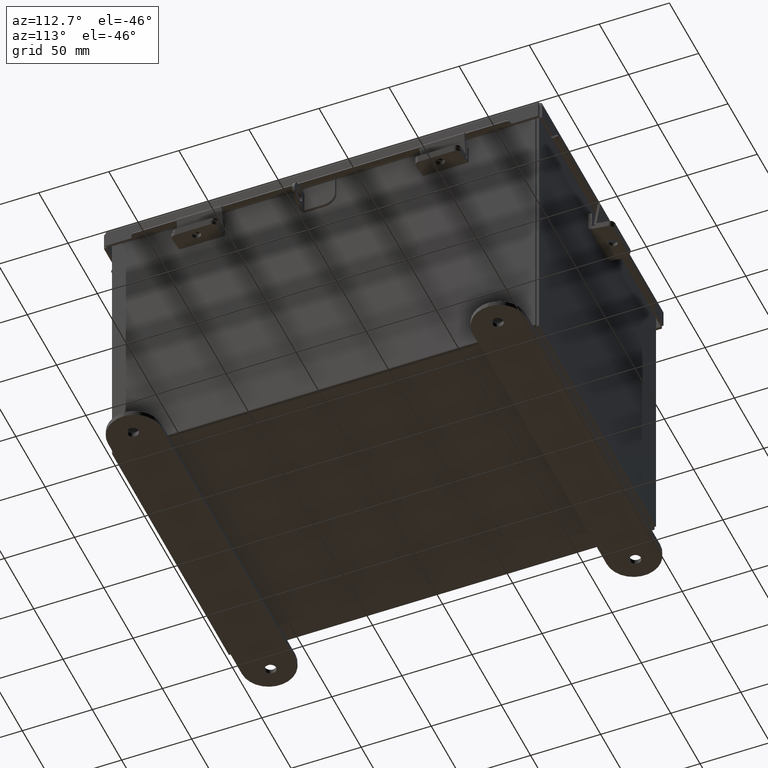
[diagram: clean part render]
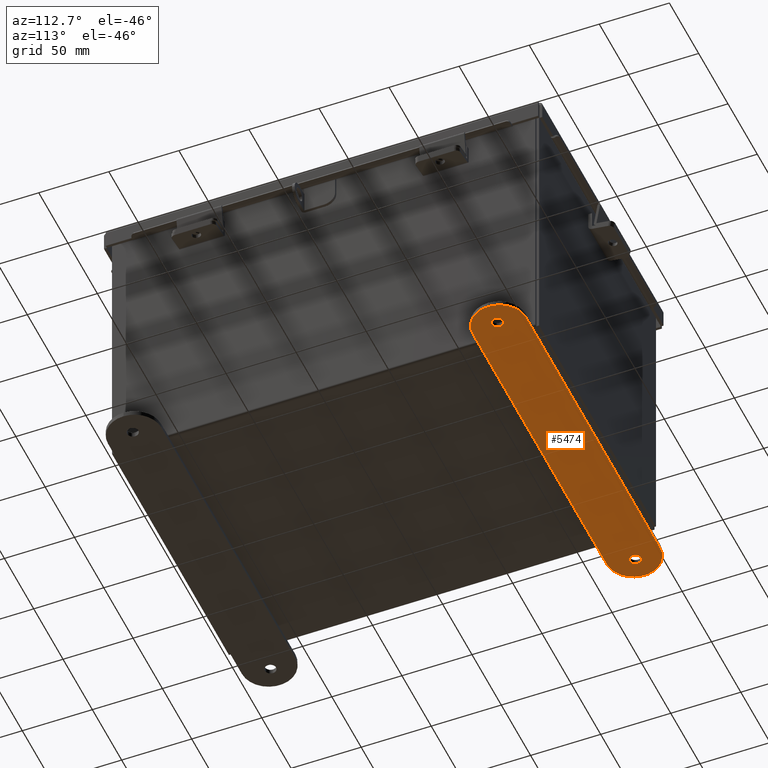
[diagram: same view with one face highlighted and labeled with its STEP entity id]
A machine part, auxiliary view. The second image highlights one B-rep face of the part: STEP entity #5474.
In plain terms, the highlighted planar face has unit normal (0, 0, 1).
Its self-contained STEP definition (entity closure, byte-faithful):
#70 = LINE ( 'NONE', #2746, #12434 ) ;
#524 = CIRCLE ( 'NONE', #2438, 0.1564999999999992800 ) ;
#576 = ORIENTED_EDGE ( 'NONE', *, *, #940, .T. ) ;
#776 = EDGE_CURVE ( 'NONE', #14219, #9197, #2740, .T. ) ;
#875 = ORIENTED_EDGE ( 'NONE', *, *, #13649, .T. ) ;
#940 = EDGE_CURVE ( 'NONE', #14368, #7557, #524, .T. ) ;
#962 = DIRECTION ( 'NONE',  ( 0.0000000000000000000, 0.0000000000000000000, -1.000000000000000000 ) ) ;
#1417 = CARTESIAN_POINT ( 'NONE',  ( 4.468500000000000600, 0.4120940649496089300, 0.0000000000000000000 ) ) ;
#1634 = PLANE ( 'NONE',  #15403 ) ;
#1668 = CARTESIAN_POINT ( 'NONE',  ( 4.499999999999999100, 0.4120940649496122000, 0.0000000000000000000 ) ) ;
#1882 = CARTESIAN_POINT ( 'NONE',  ( 4.781499999999999400, 0.4120940649496089300, 0.0000000000000000000 ) ) ;
#1883 = VECTOR ( 'NONE', #15033, 39.37007874015748100 ) ;
#2029 = AXIS2_PLACEMENT_3D ( 'NONE', #10758, #3588, #11995 ) ;
#2228 = CARTESIAN_POINT ( 'NONE',  ( 4.499999999999999100, 1.162094064949613600, 0.0000000000000000000 ) ) ;
#2281 = CARTESIAN_POINT ( 'NONE',  ( -4.499999999999999100, 1.162094064949612800, 0.0000000000000000000 ) ) ;
#2438 = AXIS2_PLACEMENT_3D ( 'NONE', #11183, #7540, #13828 ) ;
#2740 = CIRCLE ( 'NONE', #11606, 0.1564999999999992800 ) ;
#2746 = CARTESIAN_POINT ( 'NONE',  ( -4.499999999999999100, -0.3379059350503871900, 0.0000000000000000000 ) ) ;
#2844 = DIRECTION ( 'NONE',  ( -1.000000000000000000, 0.0000000000000000000, 0.0000000000000000000 ) ) ;
#3086 = CARTESIAN_POINT ( 'NONE',  ( 4.499999999999999100, -0.3379059350503883000, 0.0000000000000000000 ) ) ;
#3307 = ORIENTED_EDGE ( 'NONE', *, *, #7113, .T. ) ;
#3459 = AXIS2_PLACEMENT_3D ( 'NONE', #12651, #5424, #13832 ) ;
#3588 = DIRECTION ( 'NONE',  ( 0.0000000000000000000, 0.0000000000000000000, 1.000000000000000000 ) ) ;
#4035 = CARTESIAN_POINT ( 'NONE',  ( -4.781499999999999400, 0.4120940649496089300, 0.0000000000000000000 ) ) ;
#4140 = FACE_BOUND ( 'NONE', #12928, .T. ) ;
#4187 = DIRECTION ( 'NONE',  ( 0.0000000000000000000, 0.0000000000000000000, 1.000000000000000000 ) ) ;
#4335 = CARTESIAN_POINT ( 'NONE',  ( -4.468500000000000600, 0.4120940649496089300, 0.0000000000000000000 ) ) ;
#5424 = DIRECTION ( 'NONE',  ( 0.0000000000000000000, 0.0000000000000000000, 1.000000000000000000 ) ) ;
#5474 = ADVANCED_FACE ( 'NONE', ( #13718, #4140, #13357 ), #1634, .F. ) ;
#5783 = ORIENTED_EDGE ( 'NONE', *, *, #776, .F. ) ;
#5915 = DIRECTION ( 'NONE',  ( -1.000000000000000000, 0.0000000000000000000, 0.0000000000000000000 ) ) ;
#6104 = CARTESIAN_POINT ( 'NONE',  ( -4.625000000000000000, 0.4120940649496089300, 0.0000000000000000000 ) ) ;
#6198 = AXIS2_PLACEMENT_3D ( 'NONE', #8127, #962, #9303 ) ;
#6330 = CARTESIAN_POINT ( 'NONE',  ( 4.499999999999999100, 0.4120940649496122000, 0.0000000000000000000 ) ) ;
#6369 = DIRECTION ( 'NONE',  ( 1.000000000000000000, -1.214154663850783900E-016, 0.0000000000000000000 ) ) ;
#6743 = DIRECTION ( 'NONE',  ( 0.0000000000000000000, 0.0000000000000000000, -1.000000000000000000 ) ) ;
#7113 = EDGE_CURVE ( 'NONE', #7377, #10929, #7469, .T. ) ;
#7299 = EDGE_CURVE ( 'NONE', #7557, #14368, #14064, .T. ) ;
#7377 = VERTEX_POINT ( 'NONE', #2281 ) ;
#7469 = CIRCLE ( 'NONE', #12163, 0.7499999999999998900 ) ;
#7540 = DIRECTION ( 'NONE',  ( 0.0000000000000000000, 0.0000000000000000000, -1.000000000000000000 ) ) ;
#7557 = VERTEX_POINT ( 'NONE', #1417 ) ;
#7560 = CIRCLE ( 'NONE', #2029, 0.1564999999999992800 ) ;
#7615 = CIRCLE ( 'NONE', #14568, 0.7500000000000010000 ) ;
#7788 = ORIENTED_EDGE ( 'NONE', *, *, #12818, .T. ) ;
#8127 = CARTESIAN_POINT ( 'NONE',  ( 4.625000000000000000, 0.4120940649496089300, 0.0000000000000000000 ) ) ;
#8269 = LINE ( 'NONE', #13867, #1883 ) ;
#8402 = EDGE_LOOP ( 'NONE', ( #15308, #8801, #875, #3307, #7788 ) ) ;
#8678 = VERTEX_POINT ( 'NONE', #14273 ) ;
#8801 = ORIENTED_EDGE ( 'NONE', *, *, #12957, .T. ) ;
#9197 = VERTEX_POINT ( 'NONE', #4335 ) ;
#9303 = DIRECTION ( 'NONE',  ( -1.000000000000000000, 0.0000000000000000000, 0.0000000000000000000 ) ) ;
#9560 = EDGE_CURVE ( 'NONE', #11956, #8678, #7615, .T. ) ;
#10024 = DIRECTION ( 'NONE',  ( 0.0000000000000000000, 0.0000000000000000000, 1.000000000000000000 ) ) ;
#10437 = VERTEX_POINT ( 'NONE', #2228 ) ;
#10602 = ORIENTED_EDGE ( 'NONE', *, *, #7299, .T. ) ;
#10758 = CARTESIAN_POINT ( 'NONE',  ( -4.625000000000000000, 0.4120940649496089300, 0.0000000000000000000 ) ) ;
#10929 = VERTEX_POINT ( 'NONE', #12746 ) ;
#11012 = EDGE_LOOP ( 'NONE', ( #576, #10602 ) ) ;
#11174 = EDGE_CURVE ( 'NONE', #9197, #14219, #7560, .T. ) ;
#11183 = CARTESIAN_POINT ( 'NONE',  ( 4.625000000000000000, 0.4120940649496089300, 0.0000000000000000000 ) ) ;
#11385 = CARTESIAN_POINT ( 'NONE',  ( -4.499999999999999100, 0.4120940649496122000, 0.0000000000000000000 ) ) ;
#11606 = AXIS2_PLACEMENT_3D ( 'NONE', #6104, #15431, #13706 ) ;
#11956 = VERTEX_POINT ( 'NONE', #3086 ) ;
#11995 = DIRECTION ( 'NONE',  ( 1.000000000000000000, 0.0000000000000000000, 0.0000000000000000000 ) ) ;
#12163 = AXIS2_PLACEMENT_3D ( 'NONE', #11385, #4187, #12612 ) ;
#12434 = VECTOR ( 'NONE', #6369, 39.37007874015748100 ) ;
#12612 = DIRECTION ( 'NONE',  ( 1.000000000000000000, 0.0000000000000000000, 0.0000000000000000000 ) ) ;
#12651 = CARTESIAN_POINT ( 'NONE',  ( 4.499999999999999100, 0.4120940649496122000, 0.0000000000000000000 ) ) ;
#12746 = CARTESIAN_POINT ( 'NONE',  ( -4.499999999999999100, -0.3379059350503871900, 0.0000000000000000000 ) ) ;
#12818 = EDGE_CURVE ( 'NONE', #10929, #11956, #70, .T. ) ;
#12928 = EDGE_LOOP ( 'NONE', ( #15539, #5783 ) ) ;
#12957 = EDGE_CURVE ( 'NONE', #8678, #10437, #14473, .T. ) ;
#13357 = FACE_BOUND ( 'NONE', #11012, .T. ) ;
#13649 = EDGE_CURVE ( 'NONE', #10437, #7377, #8269, .T. ) ;
#13706 = DIRECTION ( 'NONE',  ( 1.000000000000000000, 0.0000000000000000000, 0.0000000000000000000 ) ) ;
#13718 = FACE_OUTER_BOUND ( 'NONE', #8402, .T. ) ;
#13828 = DIRECTION ( 'NONE',  ( -1.000000000000000000, 0.0000000000000000000, 0.0000000000000000000 ) ) ;
#13832 = DIRECTION ( 'NONE',  ( -1.000000000000000000, 0.0000000000000000000, 0.0000000000000000000 ) ) ;
#13867 = CARTESIAN_POINT ( 'NONE',  ( -4.499999999999999100, 1.162094064949612800, 0.0000000000000000000 ) ) ;
#14064 = CIRCLE ( 'NONE', #6198, 0.1564999999999992800 ) ;
#14219 = VERTEX_POINT ( 'NONE', #4035 ) ;
#14273 = CARTESIAN_POINT ( 'NONE',  ( 5.250000000000000900, 0.4120940649496122000, 0.0000000000000000000 ) ) ;
#14368 = VERTEX_POINT ( 'NONE', #1882 ) ;
#14473 = CIRCLE ( 'NONE', #3459, 0.7500000000000010000 ) ;
#14568 = AXIS2_PLACEMENT_3D ( 'NONE', #1668, #10024, #2844 ) ;
#15033 = DIRECTION ( 'NONE',  ( -1.000000000000000000, -1.214154663850783900E-016, 0.0000000000000000000 ) ) ;
#15308 = ORIENTED_EDGE ( 'NONE', *, *, #9560, .T. ) ;
#15403 = AXIS2_PLACEMENT_3D ( 'NONE', #6330, #6743, #5915 ) ;
#15431 = DIRECTION ( 'NONE',  ( 0.0000000000000000000, 0.0000000000000000000, 1.000000000000000000 ) ) ;
#15539 = ORIENTED_EDGE ( 'NONE', *, *, #11174, .F. ) ;